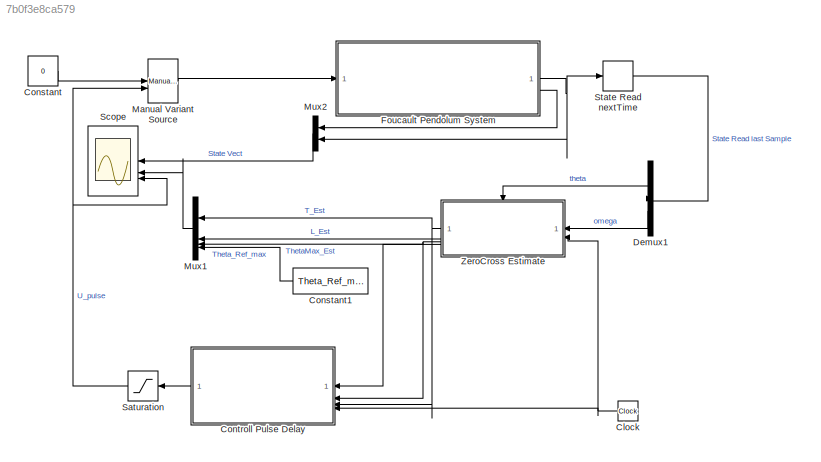
MODEL slx_7b0f3e8ca579
KIND model
CONFIG AbsTol = auto
CONFIG EnableMultiTasking = off
CONFIG FixedStep = 1/frameRate
CONFIG InitFcn = StartCond
CONFIG MaxStep = 1/frameRate
CONFIG MinStep = auto
CONFIG RelTol = 1e-3
CONFIG SampleTimeConstraint = Unconstrained
CONFIG SolverName = FixedStepAuto
CONFIG StartTime = 0.0
CONFIG StopFcn = % PlotResult
CONFIG StopTime = 60
BLOCK [Clock] Clock
BLOCK [Constant] Constant
  Value = 0
BLOCK [Constant] Constant1
  Value = Theta_Ref_max
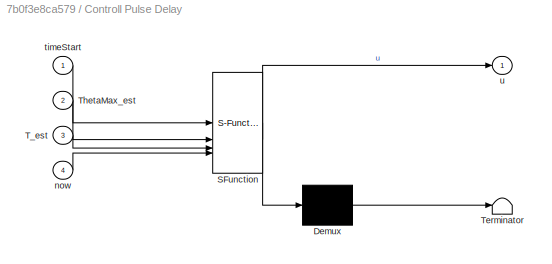
BLOCK [SubSystem] Controll Pulse Delay
  ErrorFcn = Stateflow.Translate.translate
  LibrarySourceBlock = simulink/User-Defined\nFunctions/MATLAB Function
  NameLocation = top
  PermitHierarchicalResolution = ExplicitOnly
  SFBlockType = MATLAB Function
  TreatAsAtomicUnit = on
BLOCK [Demux] Controll Pulse Delay/ Demux 
  Outputs = 1
BLOCK [S-Function] Controll Pulse Delay/ SFunction 
  EnableBusSupport = on
  FunctionName = sf_sfun
  Parameters = K_p,Theta_Ref_max
  PortCounts = [4 2]
  SFcnIsStateOwnerBlock = off
  SFunctionDeploymentMode = off
  Tag = Stateflow S-Function 3
BLOCK [Terminator] Controll Pulse Delay/ Terminator 
BLOCK [Inport] Controll Pulse Delay/T_est
  Port = 3
BLOCK [Inport] Controll Pulse Delay/ThetaMax_est
  Port = 2
BLOCK [Inport] Controll Pulse Delay/now
  Port = 4
BLOCK [Inport] Controll Pulse Delay/timeStart
BLOCK [Outport] Controll Pulse Delay/u
BLOCK [Demux] Demux1
  Outputs = 2
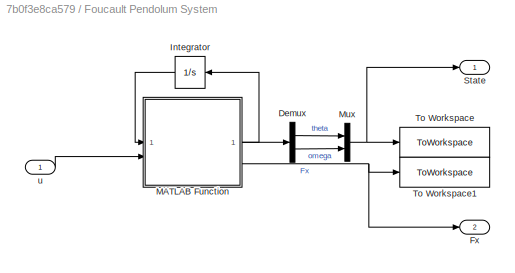
BLOCK [SubSystem] Foucault Pendolum System
  NameLocation = top
BLOCK [Demux] Foucault Pendolum System/Demux
  Outputs = 2
BLOCK [Outport] Foucault Pendolum System/Fx
  Port = 2
BLOCK [Integrator] Foucault Pendolum System/Integrator
  InitialCondition = y0
  NameLocation = top
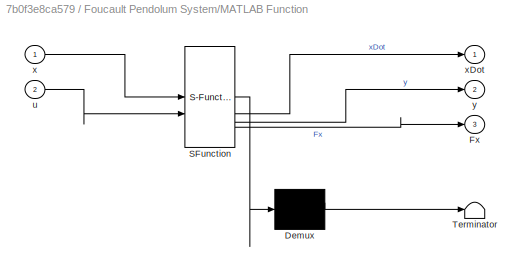
BLOCK [SubSystem] Foucault Pendolum System/MATLAB Function
  ErrorFcn = Stateflow.Translate.translate
  LibrarySourceBlock = simulink/User-Defined\nFunctions/MATLAB Function
  PermitHierarchicalResolution = ExplicitOnly
  SFBlockType = MATLAB Function
  TreatAsAtomicUnit = on
BLOCK [Demux] Foucault Pendolum System/MATLAB Function/ Demux 
  Outputs = 1
BLOCK [S-Function] Foucault Pendolum System/MATLAB Function/ SFunction 
  EnableBusSupport = on
  FunctionName = sf_sfun
  Parameters = Kattr,Km,L,g
  PortCounts = [2 4]
  SFcnIsStateOwnerBlock = off
  SFunctionDeploymentMode = off
  Tag = Stateflow S-Function 2
BLOCK [Terminator] Foucault Pendolum System/MATLAB Function/ Terminator 
BLOCK [Outport] Foucault Pendolum System/MATLAB Function/Fx
  Port = 3
BLOCK [Inport] Foucault Pendolum System/MATLAB Function/u
  Port = 2
BLOCK [Inport] Foucault Pendolum System/MATLAB Function/x
BLOCK [Outport] Foucault Pendolum System/MATLAB Function/xDot
BLOCK [Outport] Foucault Pendolum System/MATLAB Function/y
  Port = 2
BLOCK [Mux] Foucault Pendolum System/Mux
  DisplayOption = bar
  Inputs = 2
BLOCK [Outport] Foucault Pendolum System/State
BLOCK [ToWorkspace] Foucault Pendolum System/To Workspace
  FixptAsFi = on
  MaxDataPoints = inf
  SampleTime = -1
  Save2DSignal = 2-D array (concatenate along first dimension)
  SaveFormat = Structure With Time
  VariableName = State
BLOCK [ToWorkspace] Foucault Pendolum System/To Workspace1
  FixptAsFi = on
  MaxDataPoints = inf
  SampleTime = -1
  Save2DSignal = 2-D array (concatenate along first dimension)
  SaveFormat = Structure With Time
  VariableName = Fx
BLOCK [Inport] Foucault Pendolum System/u
BLOCK [Reference] Manual Variant Source  REF=simulink/Signal
Routing/Manual
Variant Source
  SourceBlock = simulink/Signal\nRouting/Manual\nVariant Source
  SourceType = ManualVariantSource
BLOCK [Mux] Mux1
  DisplayOption = bar
BLOCK [Mux] Mux2
  DisplayOption = bar
  Inputs = 2
BLOCK [Saturate] Saturation
  LowerLimit = 0
  UpperLimit = 1
BLOCK [Scope] Scope
  Floating = off
  NameLocation = top
  NumInputPorts = 3
  ScopeSpecificationString = Simulink.scopes.TimeScopeBlockCfg('CurrentConfiguration', extmgr.ConfigurationSet(extmgr.Configuration('Core','General UI',true),extmgr.Configuration('Core','Source UI',true),extmgr.Configuration('Sources','WiredSimulink',true),extmgr.Configuration('Visuals','Time Domain',true,'SerializedDisplays',{struct('MinYLimReal','-1.44784','MaxYLimReal','1.4388','YLabelReal','','MinYLimMag','0.00000','MaxYL...<+2840ch>
BLOCK [Memory] State Read nextTime
  InheritSampleTime = on
  NameLocation = top
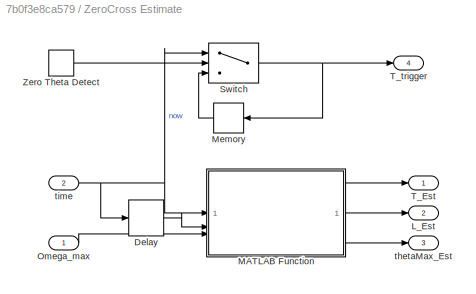
BLOCK [SubSystem] ZeroCross Estimate
  TreatAsAtomicUnit = on
BLOCK [Delay] ZeroCross Estimate/Delay
  DelayLength = 1
  InitialCondition = 0
  InputPortMap = u0
BLOCK [Outport] ZeroCross Estimate/L_Est
  NameLocation = right
  Port = 2
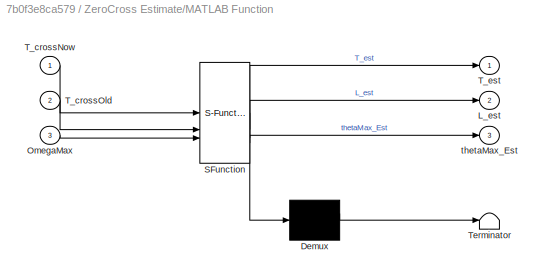
BLOCK [SubSystem] ZeroCross Estimate/MATLAB Function
  ErrorFcn = Stateflow.Translate.translate
  LibrarySourceBlock = simulink/User-Defined\nFunctions/MATLAB Function
  PermitHierarchicalResolution = ExplicitOnly
  SFBlockType = MATLAB Function
  TreatAsAtomicUnit = on
BLOCK [Demux] ZeroCross Estimate/MATLAB Function/ Demux 
  Outputs = 1
BLOCK [S-Function] ZeroCross Estimate/MATLAB Function/ SFunction 
  EnableBusSupport = on
  FunctionName = sf_sfun
  Parameters = L,g
  PortCounts = [3 4]
  SFcnIsStateOwnerBlock = off
  SFunctionDeploymentMode = off
  Tag = Stateflow S-Function 1
BLOCK [Terminator] ZeroCross Estimate/MATLAB Function/ Terminator 
BLOCK [Outport] ZeroCross Estimate/MATLAB Function/L_est
  Port = 2
BLOCK [Inport] ZeroCross Estimate/MATLAB Function/OmegaMax
  Port = 3
BLOCK [Inport] ZeroCross Estimate/MATLAB Function/T_crossNow
BLOCK [Inport] ZeroCross Estimate/MATLAB Function/T_crossOld
  Port = 2
BLOCK [Outport] ZeroCross Estimate/MATLAB Function/T_est
BLOCK [Outport] ZeroCross Estimate/MATLAB Function/thetaMax_Est
  Port = 3
BLOCK [Memory] ZeroCross Estimate/Memory
  InheritSampleTime = on
  NameLocation = top
BLOCK [Inport] ZeroCross Estimate/Omega_max
BLOCK [Switch] ZeroCross Estimate/Switch
  Criteria = u2 > Threshold
  InputSameDT = off
  SaturateOnIntegerOverflow = off
BLOCK [Outport] ZeroCross Estimate/T_Est
  NameLocation = right
BLOCK [Outport] ZeroCross Estimate/T_trigger
  NameLocation = right
  Port = 4
BLOCK [TriggerPort] ZeroCross Estimate/Zero Theta Detect
  ShowOutputPort = on
  StatesWhenEnabling = held
  TriggerType = either
  VariantControl = (inherit)
BLOCK [Outport] ZeroCross Estimate/thetaMax_Est
  NameLocation = right
  Port = 3
BLOCK [Inport] ZeroCross Estimate/time
  Port = 2
NET Clock:1 -> Controll Pulse Delay:4, ZeroCross Estimate:2
LINE Constant1:1 -> Mux1:4
LINE Constant:1 -> Manual Variant Source:1
LINE Controll Pulse Delay:1 -> Saturation:1
LINE Demux1:1 -> ZeroCross Estimate:trigger
LINE Demux1:2 -> ZeroCross Estimate:1
LINE Foucault Pendolum System/Demux:1 -> Foucault Pendolum System/Mux:1
LINE Foucault Pendolum System/Demux:2 -> Foucault Pendolum System/Mux:2
LINE Foucault Pendolum System/Integrator:1 -> Foucault Pendolum System/MATLAB Function:1
LINE Foucault Pendolum System/MATLAB Function:1 -> Foucault Pendolum System/Integrator:1
LINE Foucault Pendolum System/MATLAB Function:2 -> Foucault Pendolum System/Demux:1
NET Foucault Pendolum System/MATLAB Function:3 -> Foucault Pendolum System/Fx:1, Foucault Pendolum System/To Workspace1:1
NET Foucault Pendolum System/Mux:1 -> Foucault Pendolum System/State:1, Foucault Pendolum System/To Workspace:1
LINE Foucault Pendolum System/u:1 -> Foucault Pendolum System/MATLAB Function:2
NET Foucault Pendolum System:1 -> Mux2:2, State Read nextTime:1
LINE Foucault Pendolum System:2 -> Mux2:1
LINE Manual Variant Source:1 -> Foucault Pendolum System:1
LINE Mux1:1 -> Scope:2
LINE Mux2:1 -> Scope:1
NET Saturation:1 -> Manual Variant Source:2, Scope:3
LINE State Read nextTime:1 -> Demux1:1
LINE ZeroCross Estimate/Delay:1 -> ZeroCross Estimate/MATLAB Function:2
LINE ZeroCross Estimate/MATLAB Function:1 -> ZeroCross Estimate/T_Est:1
LINE ZeroCross Estimate/MATLAB Function:2 -> ZeroCross Estimate/L_Est:1
LINE ZeroCross Estimate/MATLAB Function:3 -> ZeroCross Estimate/thetaMax_Est:1
LINE ZeroCross Estimate/Memory:1 -> ZeroCross Estimate/Switch:3
LINE ZeroCross Estimate/Omega_max:1 -> ZeroCross Estimate/MATLAB Function:3
NET ZeroCross Estimate/Switch:1 -> ZeroCross Estimate/Memory:1, ZeroCross Estimate/T_trigger:1
LINE ZeroCross Estimate/Zero Theta Detect:1 -> ZeroCross Estimate/Switch:2
NET ZeroCross Estimate/time:1 -> ZeroCross Estimate/Delay:1, ZeroCross Estimate/MATLAB Function:1, ZeroCross Estimate/Switch:1
NET ZeroCross Estimate:1 -> Controll Pulse Delay:3, Mux1:1
LINE ZeroCross Estimate:2 -> Mux1:2
NET ZeroCross Estimate:3 -> Controll Pulse Delay:2, Mux1:3
LINE ZeroCross Estimate:4 -> Controll Pulse Delay:1
note: NET lines group one-source signal fan-out (src -> all destinations, sorted); 1:1 wires keep LINE
CHART ZeroCross Estimate/MATLAB Function states=1 transitions=1
  STATE_LABEL 'eML_blk_kernel()'
  STATE_LABEL 'SCRIPT:\nfunction [T_est, L_est, thetaMax_Est] = fcn(T_crossNow, T_crossOld, OmegaMax, g, L)\nif(T_crossOld == 0)\n    % Aspetto di vedere almeno 2 passaggi\n    [T_est, L_est, thetaMax_Est] = deal(0,0,0);\n    return\nend\nT_est = (T_crossNow - T_crossOld) * 2; % Misuro mezzo periodo\nL_est = (T_est/(2*pi))^2 * g;\nVmaxNow = OmegaMax * L; % Nella realtà misuro V_max, quindi va bene\nthetaMax_Est = acos(1 -...<+30ch>'
CHART Foucault Pendolum System/MATLAB Function states=1 transitions=1
  STATE_LABEL 'eML_blk_kernel()'
  STATE_LABEL 'SCRIPT:\nfunction [xDot,y,Fx] = pendDinamic(x,u, L, Km, Kattr, g)\n% x   = [theta, omega]\n\n[theta, omega] = deal(x(1), x(2));\n\n% Matrice dinamica interna non lineare nei parametri\nF_state = [              omega;\n           -g/L*sin(theta) - Kattr * omega];\n\n% Matrice controllo non lineare nei coefficienti\nFm_x = -sign(theta)* Km * cos(theta)/(1 + abs(L*sin(theta)))^2;\n\nB_state = [     0;\n           ...<+88ch>'
CHART Controll Pulse Delay states=1 transitions=1
  STATE_LABEL 'eML_blk_kernel()'
  STATE_LABEL "SCRIPT:\nfunction u = uDelay(timeStart, ThetaMax_est, T_est, now, K_p, Theta_Ref_max)\n\nif now == 0 || timeStart == 0\n    u=0;\n    return\nend\n\nTHalf = T_est/2;\nerr = Theta_Ref_max - ThetaMax_est;\n\n% THalf*0.51 = Inizio discesa + eps\nTStartCtrl = THalf*0.51;\n\n% ThetaMax_est*0.45 = Fattore che estende la durata del controllo all'aumentare della velocità angolare => Sposto lo spegnimento più vicino all...<+515ch>"
CHART  states=0 transitions=0
CHART  states=0 transitions=0
CHART  states=0 transitions=0
